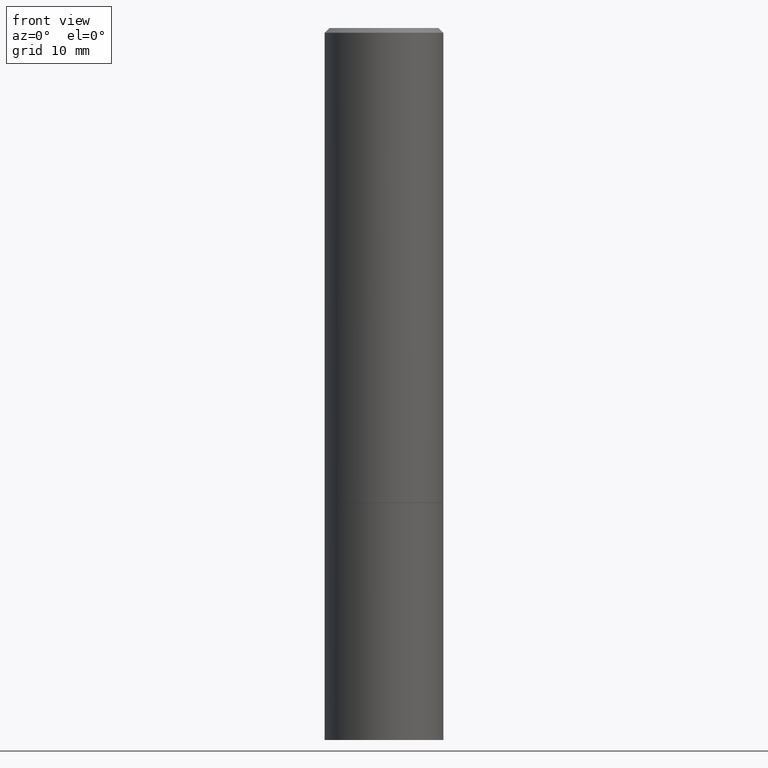
[diagram: clean part render]
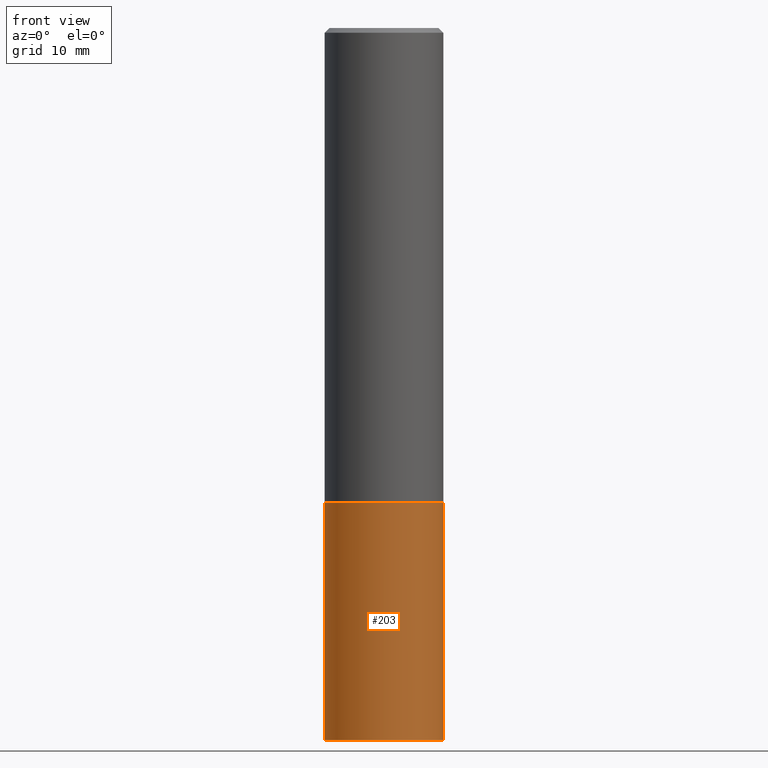
[diagram: same view with one face highlighted and labeled with its STEP entity id]
A machine part, front view. The second image highlights one B-rep face of the part: STEP entity #203.
In plain terms, the highlighted cylindrical surface (partial cylindrical patch) has radius 6.35 mm, axis along (-0, 0, 1).
Its self-contained STEP definition (entity closure, byte-faithful):
#1 = DIRECTION ( 'NONE',  ( -2.445468806185136597E-29, 3.491481338843145583E-15, 1.000000000000000000 ) ) ;
#9 = DIRECTION ( 'NONE',  ( -2.445468806185136877E-29, 3.491481338843145188E-15, 1.000000000000000000 ) ) ;
#25 = EDGE_LOOP ( 'NONE', ( #158, #217, #324, #154 ) ) ;
#27 = FACE_OUTER_BOUND ( 'NONE', #25, .T. ) ;
#51 = CARTESIAN_POINT ( 'NONE',  ( -0.2500000000000000000, -6.952346507707613689E-15, -2.000000000000000444 ) ) ;
#53 = VERTEX_POINT ( 'NONE', #271 ) ;
#58 = CARTESIAN_POINT ( 'NONE',  ( 0.000000000000000000, 0.000000000000000000, 0.000000000000000000 ) ) ;
#60 = VECTOR ( 'NONE', #9, 39.37007874015748143 ) ;
#69 = DIRECTION ( 'NONE',  ( -2.445468806185136597E-29, 3.491481338843145583E-15, 1.000000000000000000 ) ) ;
#82 = AXIS2_PLACEMENT_3D ( 'NONE', #58, #1, #142 ) ;
#99 = VERTEX_POINT ( 'NONE', #51 ) ;
#119 = VERTEX_POINT ( 'NONE', #343 ) ;
#141 = CARTESIAN_POINT ( 'NONE',  ( 0.2500000000000000000, -1.745740669421566678E-15, 1.219044193948983948E-29 ) ) ;
#142 = DIRECTION ( 'NONE',  ( 1.000000000000000000, -6.982962677686266711E-15, 4.876176775795935793E-29 ) ) ;
#154 = ORIENTED_EDGE ( 'NONE', *, *, #345, .F. ) ;
#158 = ORIENTED_EDGE ( 'NONE', *, *, #321, .F. ) ;
#169 = EDGE_CURVE ( 'NONE', #119, #53, #224, .T. ) ;
#170 = DIRECTION ( 'NONE',  ( -2.445468806185136877E-29, 3.491481338843145188E-15, 1.000000000000000000 ) ) ;
#179 = CARTESIAN_POINT ( 'NONE',  ( -0.2500000000000000000, 1.776356839400250465E-15, -1.229733772563726445E-29 ) ) ;
#183 = DIRECTION ( 'NONE',  ( 1.000000000000000000, -6.982962677686262766E-15, 0.000000000000000000 ) ) ;
#203 = ADVANCED_FACE ( 'NONE', ( #27 ), #284, .T. ) ;
#208 = CIRCLE ( 'NONE', #325, 0.2500000000000000000 ) ;
#213 = CARTESIAN_POINT ( 'NONE',  ( -0.2500000000000000000, -6.952346507707613689E-15, -3.000000000000000444 ) ) ;
#217 = ORIENTED_EDGE ( 'NONE', *, *, #229, .T. ) ;
#224 = LINE ( 'NONE', #141, #226 ) ;
#226 = VECTOR ( 'NONE', #170, 39.37007874015748143 ) ;
#229 = EDGE_CURVE ( 'NONE', #268, #119, #310, .T. ) ;
#234 = CARTESIAN_POINT ( 'NONE',  ( 7.336406418555409790E-29, -1.047444401652943635E-14, -3.000000000000000444 ) ) ;
#258 = DIRECTION ( 'NONE',  ( 1.000000000000000000, -6.982962677686266711E-15, 0.000000000000000000 ) ) ;
#264 = DIRECTION ( 'NONE',  ( -2.445468806185136597E-29, 3.491481338843145583E-15, 1.000000000000000000 ) ) ;
#268 = VERTEX_POINT ( 'NONE', #213 ) ;
#271 = CARTESIAN_POINT ( 'NONE',  ( 0.2500000000000000000, -8.728703347107858632E-15, -2.000000000000000444 ) ) ;
#284 = CYLINDRICAL_SURFACE ( 'NONE', #82, 0.2500000000000000000 ) ;
#289 = LINE ( 'NONE', #179, #60 ) ;
#310 = CIRCLE ( 'NONE', #355, 0.2500000000000000000 ) ;
#321 = EDGE_CURVE ( 'NONE', #268, #99, #289, .T. ) ;
#324 = ORIENTED_EDGE ( 'NONE', *, *, #169, .T. ) ;
#325 = AXIS2_PLACEMENT_3D ( 'NONE', #353, #69, #258 ) ;
#343 = CARTESIAN_POINT ( 'NONE',  ( 0.2500000000000000000, -1.222018468595100303E-14, -3.000000000000000444 ) ) ;
#345 = EDGE_CURVE ( 'NONE', #99, #53, #208, .T. ) ;
#353 = CARTESIAN_POINT ( 'NONE',  ( 4.890937612370273754E-29, -6.982962677686291954E-15, -2.000000000000000444 ) ) ;
#355 = AXIS2_PLACEMENT_3D ( 'NONE', #234, #264, #183 ) ;